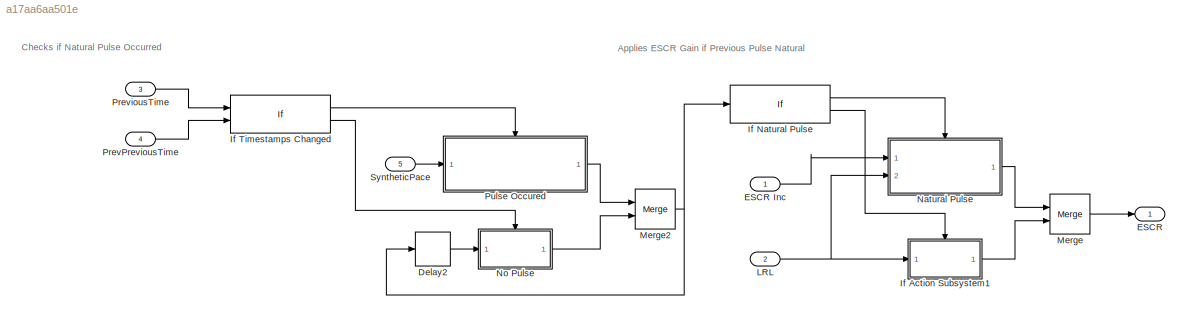
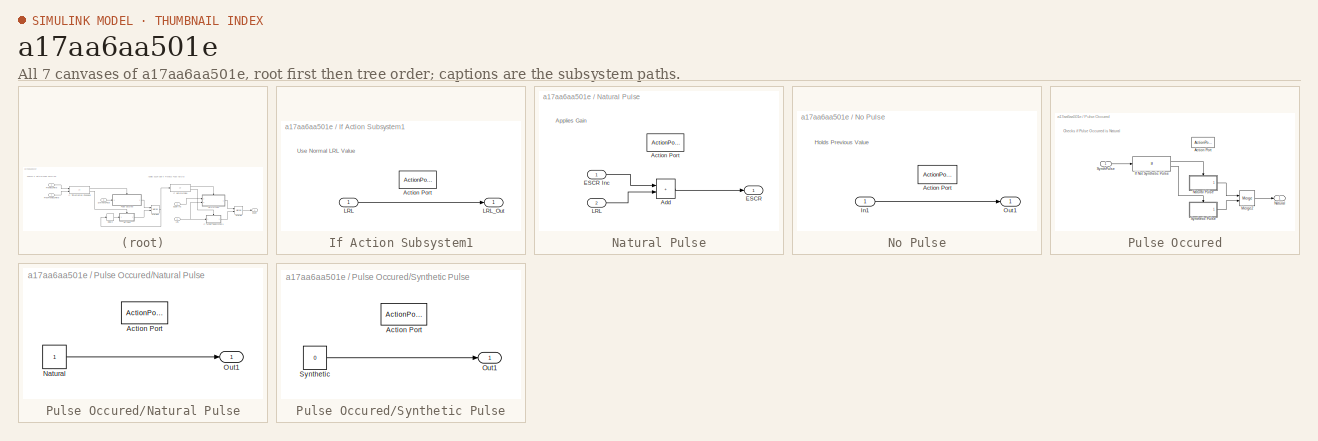
[diagram: thumbnail index - all 7 canvases of the model, root first then tree order]
MODEL slx_a17aa6aa501e
KIND model
CONFIG AbsTol = auto
CONFIG EnableMultiTasking = on
CONFIG FixedStep = 1e-3
CONFIG MaxStep = auto
CONFIG MinStep = auto
CONFIG RelTol = 1e-3
CONFIG SampleTimeConstraint = Unconstrained
CONFIG Solver = FixedStepAuto
CONFIG SolverName = FixedStepAuto
CONFIG StartTime = 0.0
CONFIG StopTime = 10.0
BLOCK [Delay] Delay2
  InputPortMap = u0
  Ports = [1, 1]
BLOCK [Outport] ESCR
  Unit = ms
BLOCK [Inport] ESCR Inc
  OutDataTypeStr = uint16
  Unit = ms
BLOCK [SubSystem] If Action Subsystem1
  Ports = [1, 1, 0, 0, 0, 0, 0, 1]
  RequestExecContextInheritance = off
  TreatAsAtomicUnit = on
BLOCK [ActionPort] If Action Subsystem1/Action Port
  ActionPortLabel = else
BLOCK [Inport] If Action Subsystem1/LRL
BLOCK [Outport] If Action Subsystem1/LRL_Out
BLOCK [If] If Natural Pulse
  IfExpression = u1
  Ports = [1, 2]
BLOCK [If] If Timestamps Changed
  IfExpression = u1~=u2
  NumInputs = 2
  Ports = [2, 2]
BLOCK [Inport] LRL
  Port = 2
  Unit = ms
BLOCK [Merge] Merge
  Ports = [2, 1]
BLOCK [Merge] Merge2
  Ports = [2, 1]
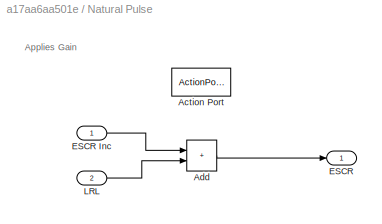
BLOCK [SubSystem] Natural Pulse
  Ports = [2, 1, 0, 0, 0, 0, 0, 1]
  RequestExecContextInheritance = off
  TreatAsAtomicUnit = on
BLOCK [ActionPort] Natural Pulse/Action Port
  ActionPortLabel = if(u1)
BLOCK [Sum] Natural Pulse/Add
  IconShape = rectangular
  Ports = [2, 1]
BLOCK [Outport] Natural Pulse/ESCR
BLOCK [Inport] Natural Pulse/ESCR Inc
BLOCK [Inport] Natural Pulse/LRL
  Port = 2
BLOCK [SubSystem] No Pulse
  Ports = [1, 1, 0, 0, 0, 0, 0, 1]
  RequestExecContextInheritance = off
  TreatAsAtomicUnit = on
BLOCK [ActionPort] No Pulse/Action Port
  ActionPortLabel = else
BLOCK [Inport] No Pulse/In1
BLOCK [Outport] No Pulse/Out1
BLOCK [Inport] PrevPreviousTime
  Port = 4
  Unit = ms
BLOCK [Inport] PreviousTime
  Port = 3
  Unit = ms
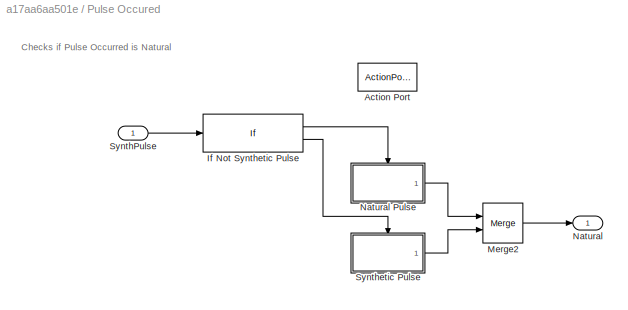
BLOCK [SubSystem] Pulse Occured
  Ports = [1, 1, 0, 0, 0, 0, 0, 1]
  RequestExecContextInheritance = off
  TreatAsAtomicUnit = on
BLOCK [ActionPort] Pulse Occured/Action Port
  ActionPortLabel = if(u1~=u2)
BLOCK [If] Pulse Occured/If Not Synthetic Pulse
  IfExpression = ~u1
  Ports = [1, 2]
BLOCK [Merge] Pulse Occured/Merge2
  Ports = [2, 1]
BLOCK [Outport] Pulse Occured/Natural
BLOCK [SubSystem] Pulse Occured/Natural Pulse
  Ports = [0, 1, 0, 0, 0, 0, 0, 1]
  RequestExecContextInheritance = off
  TreatAsAtomicUnit = on
BLOCK [ActionPort] Pulse Occured/Natural Pulse/Action Port
  ActionPortLabel = if(~u1)
BLOCK [Constant] Pulse Occured/Natural Pulse/Natural
BLOCK [Outport] Pulse Occured/Natural Pulse/Out1
BLOCK [Inport] Pulse Occured/SynthPulse
BLOCK [SubSystem] Pulse Occured/Synthetic Pulse
  Ports = [0, 1, 0, 0, 0, 0, 0, 1]
  RequestExecContextInheritance = off
  TreatAsAtomicUnit = on
BLOCK [ActionPort] Pulse Occured/Synthetic Pulse/Action Port
  ActionPortLabel = else
BLOCK [Outport] Pulse Occured/Synthetic Pulse/Out1
BLOCK [Constant] Pulse Occured/Synthetic Pulse/Synthetic
  Value = 0
BLOCK [Inport] SyntheticPace
  OutDataTypeStr = boolean
  Port = 5
ANNOTATION (root): Applies ESCR Gain if Previous Pulse Natural
ANNOTATION (root): Checks if Natural Pulse Occurred
ANNOTATION If Action Subsystem1: Use Normal LRL Value
ANNOTATION Natural Pulse: Applies Gain
ANNOTATION No Pulse: Holds Previous Value
ANNOTATION Pulse Occured: Checks if Pulse Occurred is Natural
LINE Delay2:1 -> No Pulse:1
LINE ESCR Inc:1 -> Natural Pulse:1
LINE If Action Subsystem1/LRL:1 -> If Action Subsystem1/LRL_Out:1
LINE If Action Subsystem1:1 -> Merge:2
LINE If Natural Pulse:1 -> Natural Pulse:ifaction
LINE If Natural Pulse:2 -> If Action Subsystem1:ifaction
LINE If Timestamps Changed:1 -> Pulse Occured:ifaction
LINE If Timestamps Changed:2 -> No Pulse:ifaction
NET LRL:1 -> If Action Subsystem1:1, Natural Pulse:2
NET Merge2:1 -> Delay2:1, If Natural Pulse:1
LINE Merge:1 -> ESCR:1
LINE Natural Pulse/Add:1 -> Natural Pulse/ESCR:1
LINE Natural Pulse/ESCR Inc:1 -> Natural Pulse/Add:1
LINE Natural Pulse/LRL:1 -> Natural Pulse/Add:2
LINE Natural Pulse:1 -> Merge:1
LINE No Pulse/In1:1 -> No Pulse/Out1:1
LINE No Pulse:1 -> Merge2:2
LINE PrevPreviousTime:1 -> If Timestamps Changed:2
LINE PreviousTime:1 -> If Timestamps Changed:1
LINE Pulse Occured/If Not Synthetic Pulse:1 -> Pulse Occured/Natural Pulse:ifaction
LINE Pulse Occured/If Not Synthetic Pulse:2 -> Pulse Occured/Synthetic Pulse:ifaction
LINE Pulse Occured/Merge2:1 -> Pulse Occured/Natural:1
LINE Pulse Occured/Natural Pulse/Natural:1 -> Pulse Occured/Natural Pulse/Out1:1
LINE Pulse Occured/Natural Pulse:1 -> Pulse Occured/Merge2:1
LINE Pulse Occured/SynthPulse:1 -> Pulse Occured/If Not Synthetic Pulse:1
LINE Pulse Occured/Synthetic Pulse/Synthetic:1 -> Pulse Occured/Synthetic Pulse/Out1:1
LINE Pulse Occured/Synthetic Pulse:1 -> Pulse Occured/Merge2:2
LINE Pulse Occured:1 -> Merge2:1
LINE SyntheticPace:1 -> Pulse Occured:1
note: NET lines group one-source signal fan-out (src -> all destinations, sorted); 1:1 wires keep LINE
